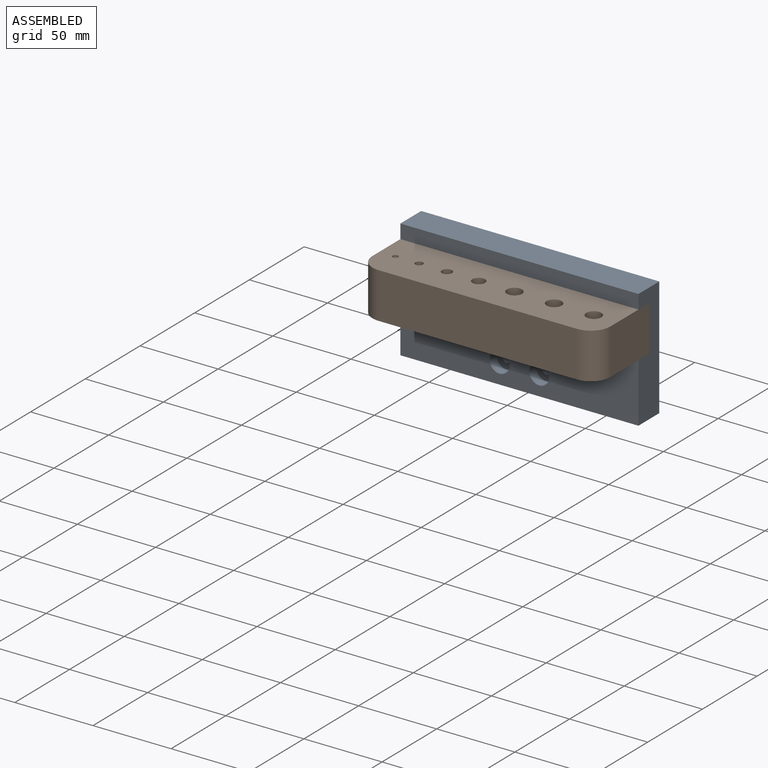
[diagram: assembled view]
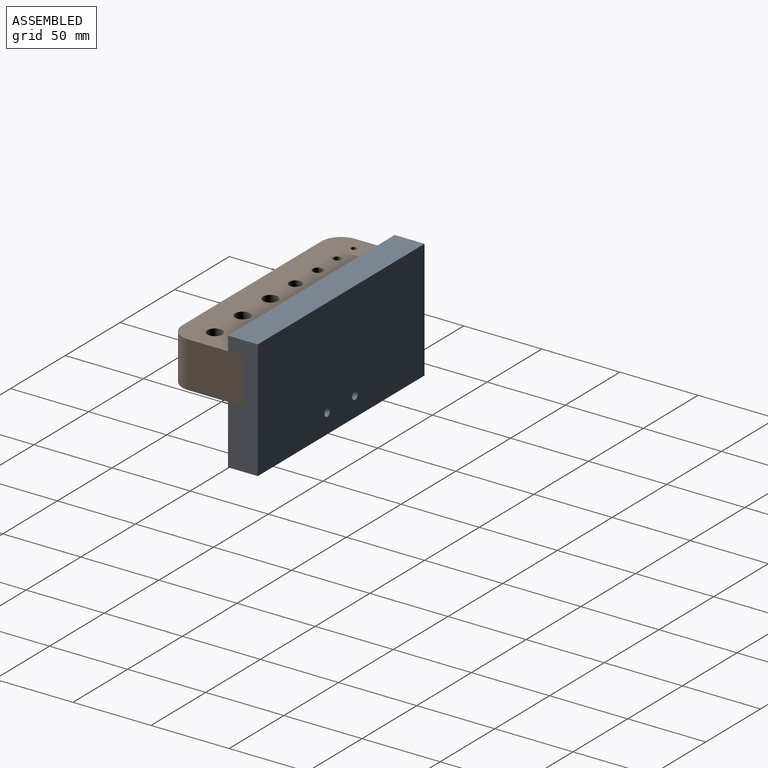
[diagram: assembled view, second angle]
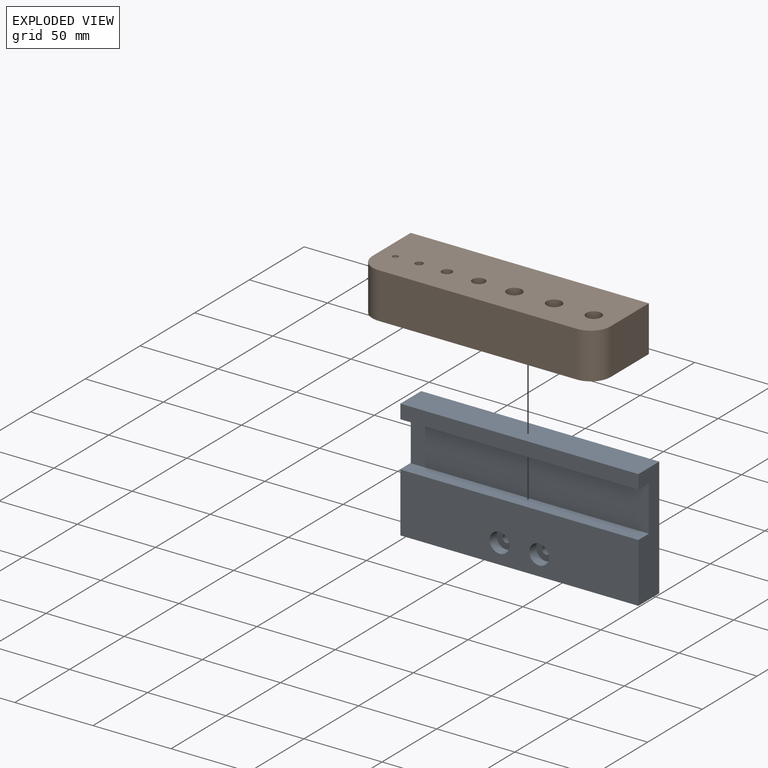
[diagram: exploded view]
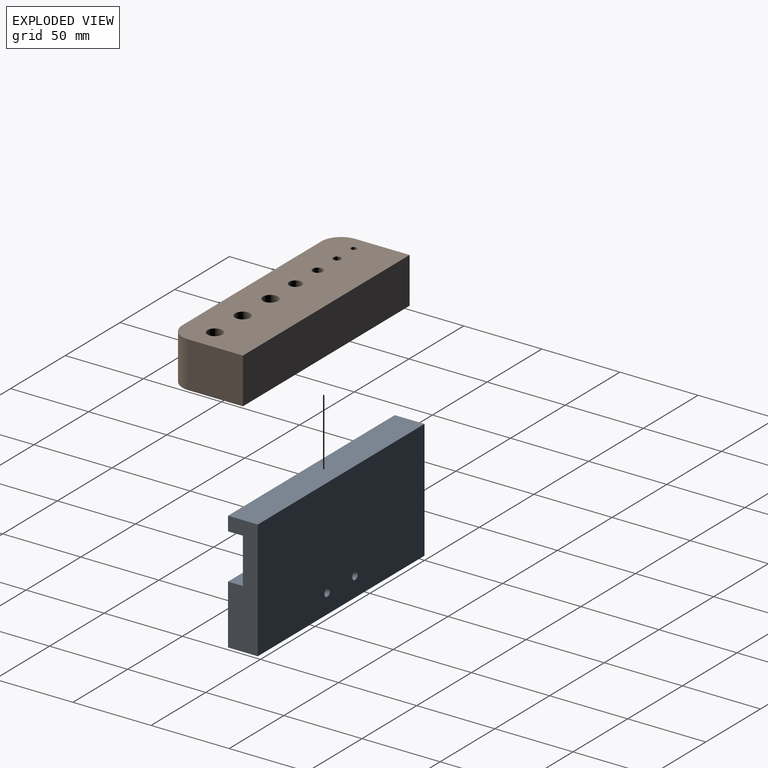
[diagram: exploded view, second angle]
ASSEMBLY  parts=2 mates=3
PART A: 16 faces, bbox 152.4x19.1x76.2 mm
  f0: plane 152.4x9.02mm, normal (0,-1,0), area 1374.2mm2, adj f1,f3,f4,f7
  f1: plane 76.2x19.05mm, normal (-1,0,0), area 1174.6mm2, adj f0,f2,f4,f5,f6,f7,f8,f9
  f2: plane 152.4x19.05mm, normal (0,0,-1), area 2903.2mm2, adj f1,f3,f5,f6
  f3: plane 76.2x19.05mm, normal (1,0,0), area 1174.6mm2, adj f0,f2,f4,f5,f6,f7,f8,f9
  f4: plane 152.4x19.05mm, normal (0,0,1), area 2903.2mm2, adj f0,f1,f3,f6
  f5: plane 152.4x38.1mm, normal (0,-1,0), area 5553.1mm2, adj f1,f2,f3,f8,f10,f12
  f6: plane 152.4x76.2mm, normal (0,1,0), area 11572.3mm2, adj f1,f2,f3,f4,f14,f15
  f7: plane 152.4x9.53mm, normal (0,0,-1), area 1451.6mm2, adj f0,f1,f3,f9
  f8: plane 152.4x9.53mm, normal (0,0,1), area 1451.6mm2, adj f1,f3,f5,f9
  f9: plane 152.4x29.08mm, normal (0,-1,0), area 4432.2mm2, adj f1,f3,f7,f8
  f10: cylinder r=6.35mm len=12.7mm, axis (0,-1,0), area 253.4mm2, adj f5,f11
  f11: plane 12.7x12.7mm, normal (0,-1,0), area 106.4mm2, adj f10,f15
  f12: cylinder r=6.35mm len=12.7mm, axis (0,-1,0), area 253.4mm2, adj f5,f13
  f13: plane 12.7x12.7mm, normal (0,-1,0), area 106.4mm2, adj f12,f14
  f14: cylinder r=2.54mm len=12.7mm, axis (0,-1,0), area 202.7mm2, adj f6,f13
  f15: cylinder r=2.54mm len=12.7mm, axis (0,-1,0), area 202.7mm2, adj f6,f11
PART B: 22 faces, bbox 152.4x47.6x29.3 mm
  f0: plane 34.93x29.34mm, normal (-1,0,0), area 1024.6mm2, adj f3,f4,f5,f20
  f1: plane 127x29.34mm, normal (0,-1,0), area 3725.8mm2, adj f4,f5,f20,f21
  f2: plane 34.93x29.34mm, normal (1,0,0), area 1024.6mm2, adj f3,f4,f5,f21
  f3: plane 152.4x29.34mm, normal (0,1,0), area 4471mm2, adj f0,f2,f4,f5
  f4: plane 152.4x47.63mm, normal (0,0,1), area 6856.6mm2, adj f0,f1,f2,f3,f6,f8,f10,f12
  f5: plane 152.4x47.63mm, normal (0,0,-1), area 7188.8mm2, adj f0,f1,f2,f3,f20,f21
  f6: cylinder r=4.83mm len=22.86mm, axis (0,0,1), area 693.2mm2, adj f4,f7
  f7: plane 9.65x9.65mm, normal (0,0,1), area 73.2mm2, adj f6
  f8: cylinder r=4.83mm len=22.86mm, axis (0,0,1), area 693.2mm2, adj f4,f9
  f9: plane 9.65x9.65mm, normal (0,0,1), area 73.2mm2, adj f8
  f10: cylinder r=4.83mm len=22.86mm, axis (0,0,1), area 693.2mm2, adj f4,f11
  f11: plane 9.65x9.65mm, normal (0,0,1), area 73.2mm2, adj f10
  f12: cylinder r=4.03mm len=22.86mm, axis (0,0,1), area 579.2mm2, adj f4,f13
  f13: plane 8.06x8.06mm, normal (0,0,1), area 51.1mm2, adj f12
  f14: cylinder r=3.24mm len=22.86mm, axis (0,0,1), area 465.2mm2, adj f4,f15
  f15: plane 6.48x6.48mm, normal (0,0,1), area 32.9mm2, adj f14
  f16: cylinder r=2.44mm len=22.86mm, axis (0,0,1), area 351.1mm2, adj f4,f17
  f17: plane 4.89x4.89mm, normal (0,0,1), area 18.8mm2, adj f16
  f18: cylinder r=1.78mm len=22.86mm, axis (0,0,1), area 255.4mm2, adj f4,f19
  f19: plane 3.56x3.56mm, normal (0,0,1), area 9.9mm2, adj f18
  f20: cylinder r=12.7mm len=29.34mm, axis (0,0,1), area 585.2mm2, adj f0,f1,f4,f5
  f21: cylinder r=12.7mm len=29.34mm, axis (0,0,-1), area 585.2mm2, adj f1,f2,f4,f5
PLACE A at identity fixed
PLACE B t=(0,-57.15,37.85)mm
MATE planar B.f2 <-> A.f3  axis (1,0,0) through (152.4,-26.99,52.51)mm
MATE planar B.f4 <-> A.f7  axis (0,0,1) through (75.55,-32.89,67.18)mm
MATE planar A.f9 <-> B.f3  axis (0,-1,0) through (76.2,-9.52,52.64)mm
